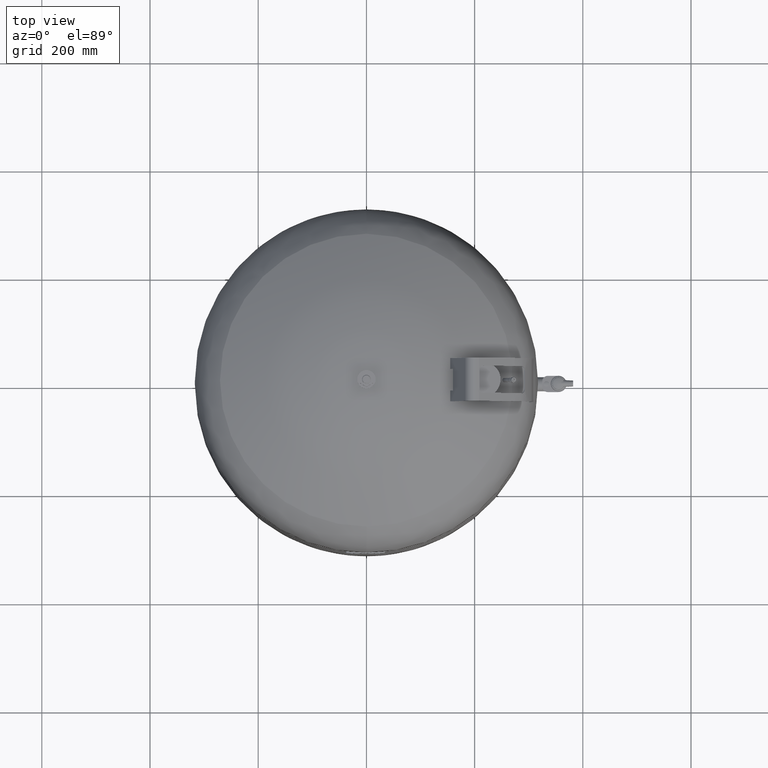
[diagram: clean part render]
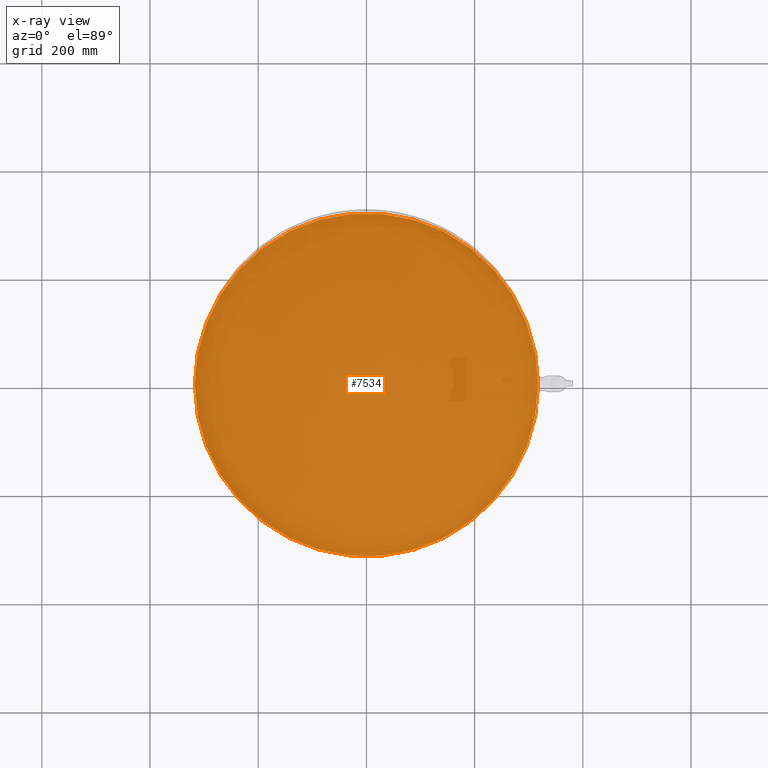
[diagram: x-ray — body ghosted, one internal face saturated and labeled with its STEP entity id]
A machine part, top view, then the same camera in x-ray: the body is ghosted and one INTERNAL B-rep face — a face not visible from any outside direction — is saturated and labeled: STEP entity #7534.
In plain terms, the highlighted planar face has unit normal (0, 0, 1).
Its self-contained STEP definition (entity closure, byte-faithful):
#7372=CARTESIAN_POINT('',(-317.0,-2.975892E-014,358.999999999999890));
#7373=VERTEX_POINT('',#7372);
#7382=CARTESIAN_POINT('',(317.0,9.061104E-015,358.999999999999940));
#7383=VERTEX_POINT('',#7382);
#7384=CARTESIAN_POINT('',(-1.558411E-014,-2.975892E-014,358.999999999999890));
#7385=DIRECTION('',(0.0,0.0,1.0));
#7386=DIRECTION('',(-1.0,0.0,0.0));
#7387=AXIS2_PLACEMENT_3D('',#7384,#7385,#7386);
#7388=CIRCLE('',#7387,317.0);
#7389=EDGE_CURVE('',#7383,#7373,#7388,.T.);
#7515=CARTESIAN_POINT('',(-1.558411E-014,-2.975892E-014,358.999999999999890));
#7516=DIRECTION('',(0.0,0.0,1.0));
#7517=DIRECTION('',(-1.0,0.0,0.0));
#7518=AXIS2_PLACEMENT_3D('',#7515,#7516,#7517);
#7519=CIRCLE('',#7518,317.0);
#7520=EDGE_CURVE('',#7373,#7383,#7519,.T.);
#7525=CARTESIAN_POINT('',(-158.500000000000000,-2.975892E-014,358.999999999999940));
#7526=DIRECTION('',(0.0,0.0,1.0));
#7527=DIRECTION('',(0.0,-1.0,0.0));
#7528=AXIS2_PLACEMENT_3D('',#7525,#7526,#7527);
#7529=PLANE('',#7528);
#7530=ORIENTED_EDGE('',*,*,#7520,.T.);
#7531=ORIENTED_EDGE('',*,*,#7389,.T.);
#7532=EDGE_LOOP('',(#7530,#7531));
#7533=FACE_OUTER_BOUND('',#7532,.T.);
#7534=ADVANCED_FACE('',(#7533),#7529,.T.);